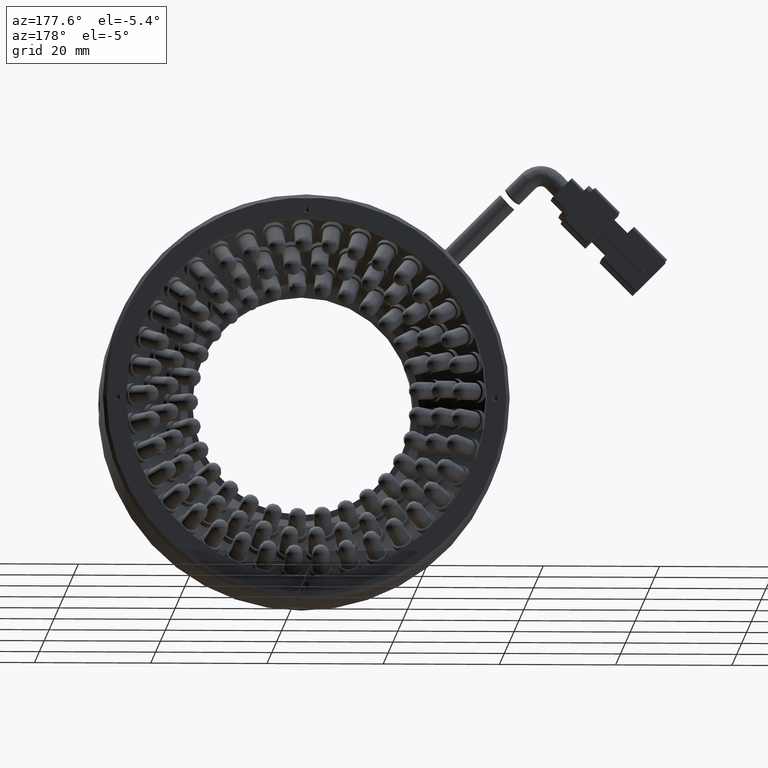
[diagram: clean part render]
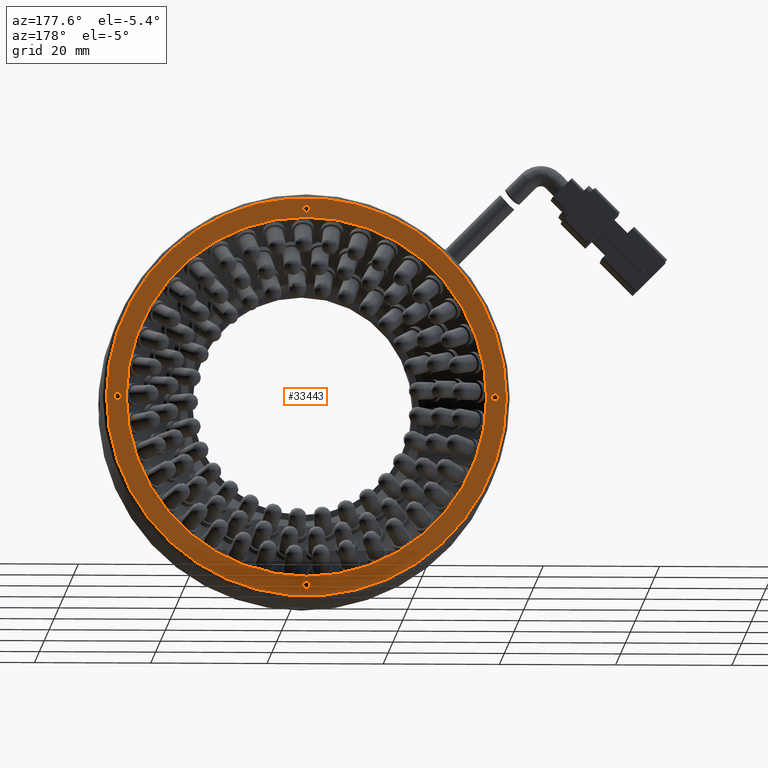
[diagram: same view with one face highlighted and labeled with its STEP entity id]
A machine part, auxiliary view. The second image highlights one B-rep face of the part: STEP entity #33443.
In plain terms, the highlighted planar face has unit normal (0, -1, 0).
Its self-contained STEP definition (entity closure, byte-faithful):
#298 = EDGE_LOOP ( 'NONE', ( #67236, #23839 ) ) ;
#1170 = AXIS2_PLACEMENT_3D ( 'NONE', #55752, #15602, #62527 ) ;
#1716 = AXIS2_PLACEMENT_3D ( 'NONE', #49441, #9264, #56136 ) ;
#4001 = ORIENTED_EDGE ( 'NONE', *, *, #29886, .F. ) ;
#5012 = VERTEX_POINT ( 'NONE', #54032 ) ;
#5267 = EDGE_LOOP ( 'NONE', ( #40097, #72951 ) ) ;
#5290 = PLANE ( 'NONE',  #81363 ) ;
#5571 = CARTESIAN_POINT ( 'NONE',  ( 31.68392897960855200, 17.30727133510869100, -1.131636017531745300E-015 ) ) ;
#6183 = ORIENTED_EDGE ( 'NONE', *, *, #74136, .F. ) ;
#6410 = ORIENTED_EDGE ( 'NONE', *, *, #46785, .F. ) ;
#6947 = CARTESIAN_POINT ( 'NONE',  ( -2.716071020391376500, 17.30727133510869800, -32.50000000000000000 ) ) ;
#7874 = FACE_BOUND ( 'NONE', #47268, .T. ) ;
#8736 = CARTESIAN_POINT ( 'NONE',  ( -2.716071020391490200, 17.30727133510869100, -1.131636017531745300E-015 ) ) ;
#9264 = DIRECTION ( 'NONE',  ( -0.0000000000000000000, 1.000000000000000000, -0.0000000000000000000 ) ) ;
#10850 = AXIS2_PLACEMENT_3D ( 'NONE', #15686, #62614, #22482 ) ;
#11140 = EDGE_CURVE ( 'NONE', #5012, #46413, #76349, .T. ) ;
#11318 = VERTEX_POINT ( 'NONE', #16622 ) ;
#11569 = DIRECTION ( 'NONE',  ( -0.0000000000000000000, 1.000000000000000000, -0.0000000000000000000 ) ) ;
#11979 = DIRECTION ( 'NONE',  ( -0.0000000000000000000, 1.000000000000000000, -0.0000000000000000000 ) ) ;
#12445 = CARTESIAN_POINT ( 'NONE',  ( -2.716071020391376500, 17.30727133510869800, -32.50000000000000000 ) ) ;
#13586 = DIRECTION ( 'NONE',  ( -0.0000000000000000000, 1.000000000000000000, -0.0000000000000000000 ) ) ;
#13707 = DIRECTION ( 'NONE',  ( 0.0000000000000000000, 0.0000000000000000000, 1.000000000000000000 ) ) ;
#15480 = DIRECTION ( 'NONE',  ( 1.000000000000000000, 0.0000000000000000000, 0.0000000000000000000 ) ) ;
#15602 = DIRECTION ( 'NONE',  ( -0.0000000000000000000, -1.000000000000000000, -0.0000000000000000000 ) ) ;
#15686 = CARTESIAN_POINT ( 'NONE',  ( -2.716071020391830800, 17.30727133510869800, 32.50000000000000000 ) ) ;
#16131 = EDGE_CURVE ( 'NONE', #84533, #42948, #61128, .T. ) ;
#16408 = AXIS2_PLACEMENT_3D ( 'NONE', #52123, #11979, #58902 ) ;
#16559 = DIRECTION ( 'NONE',  ( -4.956352788505163400E-017, -1.000000000000000000, 0.0000000000000000000 ) ) ;
#16622 = CARTESIAN_POINT ( 'NONE',  ( -2.716071020391376500, 17.30727133510869800, -33.12500000000000000 ) ) ;
#18121 = EDGE_CURVE ( 'NONE', #42948, #84533, #20698, .T. ) ;
#18946 = CARTESIAN_POINT ( 'NONE',  ( -35.21607102039148900, 17.30727133510869800, -0.6250000000000016700 ) ) ;
#19168 = DIRECTION ( 'NONE',  ( 0.0000000000000000000, 0.0000000000000000000, 1.000000000000000000 ) ) ;
#19365 = VERTEX_POINT ( 'NONE', #18946 ) ;
#20698 = CIRCLE ( 'NONE', #10850, 0.6250000000000005600 ) ;
#22479 = CIRCLE ( 'NONE', #60453, 0.6250000000000005600 ) ;
#22482 = DIRECTION ( 'NONE',  ( 0.0000000000000000000, 0.0000000000000000000, 1.000000000000000000 ) ) ;
#23030 = EDGE_CURVE ( 'NONE', #72661, #60124, #70211, .T. ) ;
#23839 = ORIENTED_EDGE ( 'NONE', *, *, #24226, .F. ) ;
#23875 = VERTEX_POINT ( 'NONE', #43704 ) ;
#24130 = AXIS2_PLACEMENT_3D ( 'NONE', #51701, #11569, #58455 ) ;
#24226 = EDGE_CURVE ( 'NONE', #11318, #23875, #78110, .T. ) ;
#24710 = VERTEX_POINT ( 'NONE', #60503 ) ;
#24850 = EDGE_LOOP ( 'NONE', ( #4001, #80433 ) ) ;
#25745 = FACE_BOUND ( 'NONE', #57292, .T. ) ;
#28832 = ORIENTED_EDGE ( 'NONE', *, *, #38935, .F. ) ;
#29886 = EDGE_CURVE ( 'NONE', #46413, #5012, #38450, .T. ) ;
#31920 = DIRECTION ( 'NONE',  ( -0.0000000000000000000, -1.000000000000000000, -0.0000000000000000000 ) ) ;
#33348 = CARTESIAN_POINT ( 'NONE',  ( -2.716071020391490200, 17.30727133510869800, -31.00000000000003600 ) ) ;
#33443 = ADVANCED_FACE ( 'NONE', ( #59270, #43593, #25745, #77106, #7874, #41441 ), #5290, .F. ) ;
#34394 = CARTESIAN_POINT ( 'NONE',  ( 29.78392897960851100, 17.30727133510869800, -1.131636017531745300E-015 ) ) ;
#34858 = EDGE_CURVE ( 'NONE', #60124, #72661, #58688, .T. ) ;
#38293 = AXIS2_PLACEMENT_3D ( 'NONE', #8736, #55613, #15480 ) ;
#38450 = CIRCLE ( 'NONE', #47780, 34.40000000000004100 ) ;
#38935 = EDGE_CURVE ( 'NONE', #77373, #19365, #58179, .T. ) ;
#39007 = CARTESIAN_POINT ( 'NONE',  ( -37.71607102039152400, 17.30727133510869800, -1.131636017531745300E-015 ) ) ;
#40097 = ORIENTED_EDGE ( 'NONE', *, *, #34858, .T. ) ;
#41156 = DIRECTION ( 'NONE',  ( 0.0000000000000000000, 0.0000000000000000000, 1.000000000000000000 ) ) ;
#41441 = FACE_BOUND ( 'NONE', #62015, .T. ) ;
#42948 = VERTEX_POINT ( 'NONE', #60086 ) ;
#43593 = FACE_OUTER_BOUND ( 'NONE', #24850, .T. ) ;
#43704 = CARTESIAN_POINT ( 'NONE',  ( -2.716071020391376500, 17.30727133510869800, -31.87500000000000000 ) ) ;
#43939 = AXIS2_PLACEMENT_3D ( 'NONE', #34394, #81248, #41156 ) ;
#45768 = DIRECTION ( 'NONE',  ( 0.0000000000000000000, -0.0000000000000000000, -1.000000000000000000 ) ) ;
#46241 = VERTEX_POINT ( 'NONE', #83577 ) ;
#46413 = VERTEX_POINT ( 'NONE', #5571 ) ;
#46785 = EDGE_CURVE ( 'NONE', #19365, #77373, #81763, .T. ) ;
#47268 = EDGE_LOOP ( 'NONE', ( #6183, #71391 ) ) ;
#47780 = AXIS2_PLACEMENT_3D ( 'NONE', #56737, #16559, #63454 ) ;
#49441 = CARTESIAN_POINT ( 'NONE',  ( -35.21607102039148900, 17.30727133510869800, -1.131636017531745300E-015 ) ) ;
#49662 = EDGE_CURVE ( 'NONE', #23875, #11318, #22479, .T. ) ;
#49988 = CARTESIAN_POINT ( 'NONE',  ( -2.716071020391486200, 17.30727133510869800, 31.00000000000003600 ) ) ;
#51701 = CARTESIAN_POINT ( 'NONE',  ( -2.716071020391830800, 17.30727133510869800, 32.50000000000000000 ) ) ;
#52123 = CARTESIAN_POINT ( 'NONE',  ( -35.21607102039148900, 17.30727133510869800, -1.131636017531745300E-015 ) ) ;
#53689 = CARTESIAN_POINT ( 'NONE',  ( 29.78392897960851100, 17.30727133510869800, -1.131636017531745300E-015 ) ) ;
#53812 = DIRECTION ( 'NONE',  ( -0.0000000000000000000, 1.000000000000000000, -0.0000000000000000000 ) ) ;
#54032 = CARTESIAN_POINT ( 'NONE',  ( -37.11607102039153000, 17.30727133510869100, 3.117888375509573500E-015 ) ) ;
#55613 = DIRECTION ( 'NONE',  ( -4.956352788505163400E-017, -1.000000000000000000, 0.0000000000000000000 ) ) ;
#55752 = CARTESIAN_POINT ( 'NONE',  ( -2.716071020391490200, 17.30727133510869800, -1.131636017531745300E-015 ) ) ;
#56136 = DIRECTION ( 'NONE',  ( 0.0000000000000000000, 0.0000000000000000000, 1.000000000000000000 ) ) ;
#56737 = CARTESIAN_POINT ( 'NONE',  ( -2.716071020391490200, 17.30727133510869100, -1.131636017531745300E-015 ) ) ;
#57292 = EDGE_LOOP ( 'NONE', ( #28832, #6410 ) ) ;
#57447 = CIRCLE ( 'NONE', #43939, 0.6250000000000005600 ) ;
#58179 = CIRCLE ( 'NONE', #1716, 0.6250000000000005600 ) ;
#58455 = DIRECTION ( 'NONE',  ( 0.0000000000000000000, 0.0000000000000000000, 1.000000000000000000 ) ) ;
#58688 = CIRCLE ( 'NONE', #1170, 31.00000000000003600 ) ;
#58902 = DIRECTION ( 'NONE',  ( 0.0000000000000000000, 0.0000000000000000000, 1.000000000000000000 ) ) ;
#59270 = FACE_BOUND ( 'NONE', #5267, .T. ) ;
#59355 = DIRECTION ( 'NONE',  ( -0.0000000000000000000, 1.000000000000000000, -0.0000000000000000000 ) ) ;
#60086 = CARTESIAN_POINT ( 'NONE',  ( -2.716071020391830800, 17.30727133510869800, 31.87500000000000000 ) ) ;
#60124 = VERTEX_POINT ( 'NONE', #33348 ) ;
#60453 = AXIS2_PLACEMENT_3D ( 'NONE', #12445, #59355, #19168 ) ;
#60485 = DIRECTION ( 'NONE',  ( 0.0000000000000000000, 0.0000000000000000000, 1.000000000000000000 ) ) ;
#60503 = CARTESIAN_POINT ( 'NONE',  ( 29.78392897960851100, 17.30727133510869800, 0.6249999999999994400 ) ) ;
#61128 = CIRCLE ( 'NONE', #24130, 0.6250000000000005600 ) ;
#62015 = EDGE_LOOP ( 'NONE', ( #81787, #81439 ) ) ;
#62527 = DIRECTION ( 'NONE',  ( 0.0000000000000000000, 0.0000000000000000000, -1.000000000000000000 ) ) ;
#62614 = DIRECTION ( 'NONE',  ( -0.0000000000000000000, 1.000000000000000000, -0.0000000000000000000 ) ) ;
#63454 = DIRECTION ( 'NONE',  ( 1.000000000000000000, 0.0000000000000000000, 0.0000000000000000000 ) ) ;
#66462 = CARTESIAN_POINT ( 'NONE',  ( -2.716071020391830800, 17.30727133510869800, 33.12500000000000000 ) ) ;
#66609 = CIRCLE ( 'NONE', #79975, 0.6250000000000005600 ) ;
#67236 = ORIENTED_EDGE ( 'NONE', *, *, #49662, .F. ) ;
#68733 = AXIS2_PLACEMENT_3D ( 'NONE', #72042, #31920, #78788 ) ;
#70211 = CIRCLE ( 'NONE', #68733, 31.00000000000003600 ) ;
#71391 = ORIENTED_EDGE ( 'NONE', *, *, #80494, .F. ) ;
#72042 = CARTESIAN_POINT ( 'NONE',  ( -2.716071020391490200, 17.30727133510869800, -1.131636017531745300E-015 ) ) ;
#72661 = VERTEX_POINT ( 'NONE', #49988 ) ;
#72951 = ORIENTED_EDGE ( 'NONE', *, *, #23030, .T. ) ;
#74136 = EDGE_CURVE ( 'NONE', #24710, #46241, #57447, .T. ) ;
#76349 = CIRCLE ( 'NONE', #38293, 34.40000000000004100 ) ;
#77106 = FACE_BOUND ( 'NONE', #298, .T. ) ;
#77373 = VERTEX_POINT ( 'NONE', #77541 ) ;
#77541 = CARTESIAN_POINT ( 'NONE',  ( -35.21607102039148900, 17.30727133510869800, 0.6249999999999994400 ) ) ;
#77857 = AXIS2_PLACEMENT_3D ( 'NONE', #6947, #53812, #13707 ) ;
#78110 = CIRCLE ( 'NONE', #77857, 0.6250000000000005600 ) ;
#78788 = DIRECTION ( 'NONE',  ( 0.0000000000000000000, 0.0000000000000000000, -1.000000000000000000 ) ) ;
#79975 = AXIS2_PLACEMENT_3D ( 'NONE', #53689, #13586, #60485 ) ;
#80433 = ORIENTED_EDGE ( 'NONE', *, *, #11140, .F. ) ;
#80494 = EDGE_CURVE ( 'NONE', #46241, #24710, #66609, .T. ) ;
#81248 = DIRECTION ( 'NONE',  ( -0.0000000000000000000, 1.000000000000000000, -0.0000000000000000000 ) ) ;
#81363 = AXIS2_PLACEMENT_3D ( 'NONE', #39007, #85831, #45768 ) ;
#81439 = ORIENTED_EDGE ( 'NONE', *, *, #18121, .F. ) ;
#81763 = CIRCLE ( 'NONE', #16408, 0.6250000000000005600 ) ;
#81787 = ORIENTED_EDGE ( 'NONE', *, *, #16131, .F. ) ;
#83577 = CARTESIAN_POINT ( 'NONE',  ( 29.78392897960851100, 17.30727133510869800, -0.6250000000000016700 ) ) ;
#84533 = VERTEX_POINT ( 'NONE', #66462 ) ;
#85831 = DIRECTION ( 'NONE',  ( 0.0000000000000000000, -1.000000000000000000, 0.0000000000000000000 ) ) ;